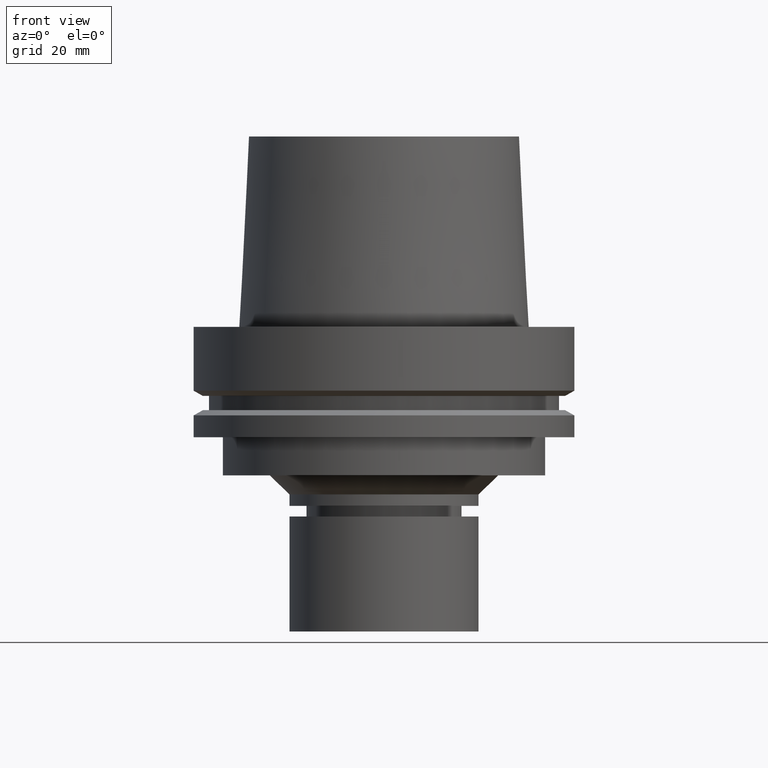
[diagram: clean part render]
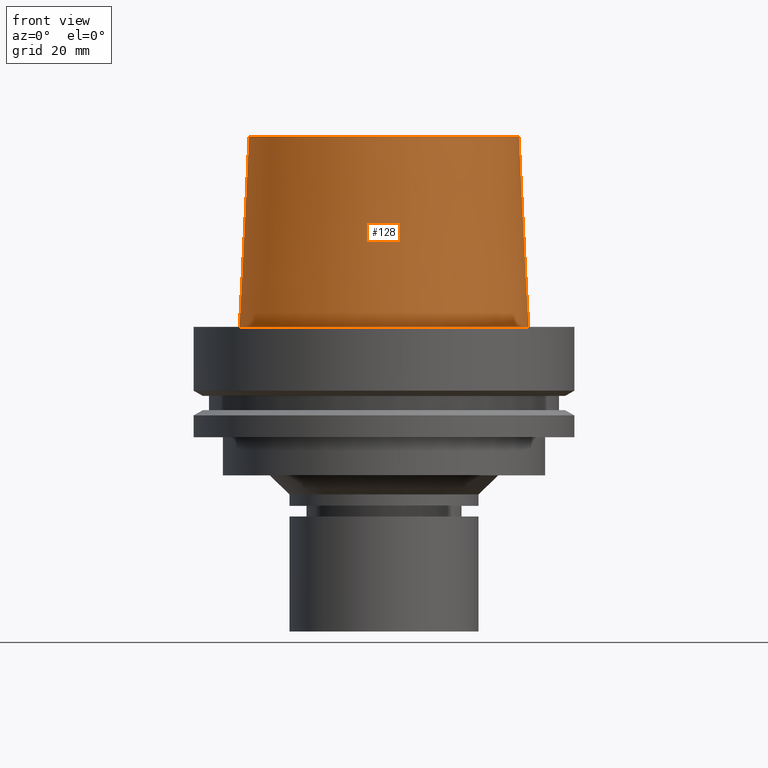
[diagram: same view with one face highlighted and labeled with its STEP entity id]
A machine part, front view. The second image highlights one B-rep face of the part: STEP entity #128.
In plain terms, the highlighted conical surface has half-angle 2.862 deg.
Its self-contained STEP definition (entity closure, byte-faithful):
#118=EDGE_CURVE('Unnamed[1]',#274,#274,#275,.T.);
#128=ADVANCED_FACE('Unnamed[1]',(#289,#290),#291,.T.);
#145=EDGE_CURVE('Unnamed[1]',#318,#318,#319,.T.);
#274=VERTEX_POINT('',#486);
#275=CIRCLE('',#487,37.9999999999349);
#289=FACE_BOUND('',#505,.T.);
#290=FACE_BOUND('',#506,.T.);
#291=CONICAL_SURFACE('',#507,36.7500000007484,0.0499583956894843);
#318=VERTEX_POINT('',#540);
#319=CIRCLE('',#541,35.5000000015618);
#486=CARTESIAN_POINT('',(-3.3636548776863E-032,37.9999999999349,-2.44634216324803E-015));
#487=AXIS2_PLACEMENT_3D('',#710,#711,#712);
#505=EDGE_LOOP('',(#726));
#506=EDGE_LOOP('',(#727));
#507=AXIS2_PLACEMENT_3D('',#728,#729,#730);
#540=CARTESIAN_POINT('',(-3.06161699786838E-015,35.5000000015618,50.0));
#541=AXIS2_PLACEMENT_3D('',#761,#762,#763);
#710=CARTESIAN_POINT('',(0.0,0.0,0.0));
#711=DIRECTION('',(6.12323399573677E-017,1.22464679914735E-016,-1.0));
#712=DIRECTION('',(-1.23259516440783E-032,1.0,1.22464679914735E-016));
#726=ORIENTED_EDGE('',*,*,#118,.F.);
#727=ORIENTED_EDGE('',*,*,#145,.T.);
#728=CARTESIAN_POINT('',(-1.53080849893419E-015,-3.06161699786838E-015,25.0));
#729=DIRECTION('',(6.12323399573676E-017,1.22464679914735E-016,-1.0));
#730=DIRECTION('',(-1.23259516440783E-032,1.0,1.22464679914735E-016));
#761=CARTESIAN_POINT('',(-3.06161699786838E-015,-6.12323399573676E-015,50.0));
#762=DIRECTION('',(6.12323399573677E-017,1.22464679914735E-016,-1.0));
#763=DIRECTION('',(-1.23259516440783E-032,1.0,1.22464679914735E-016));